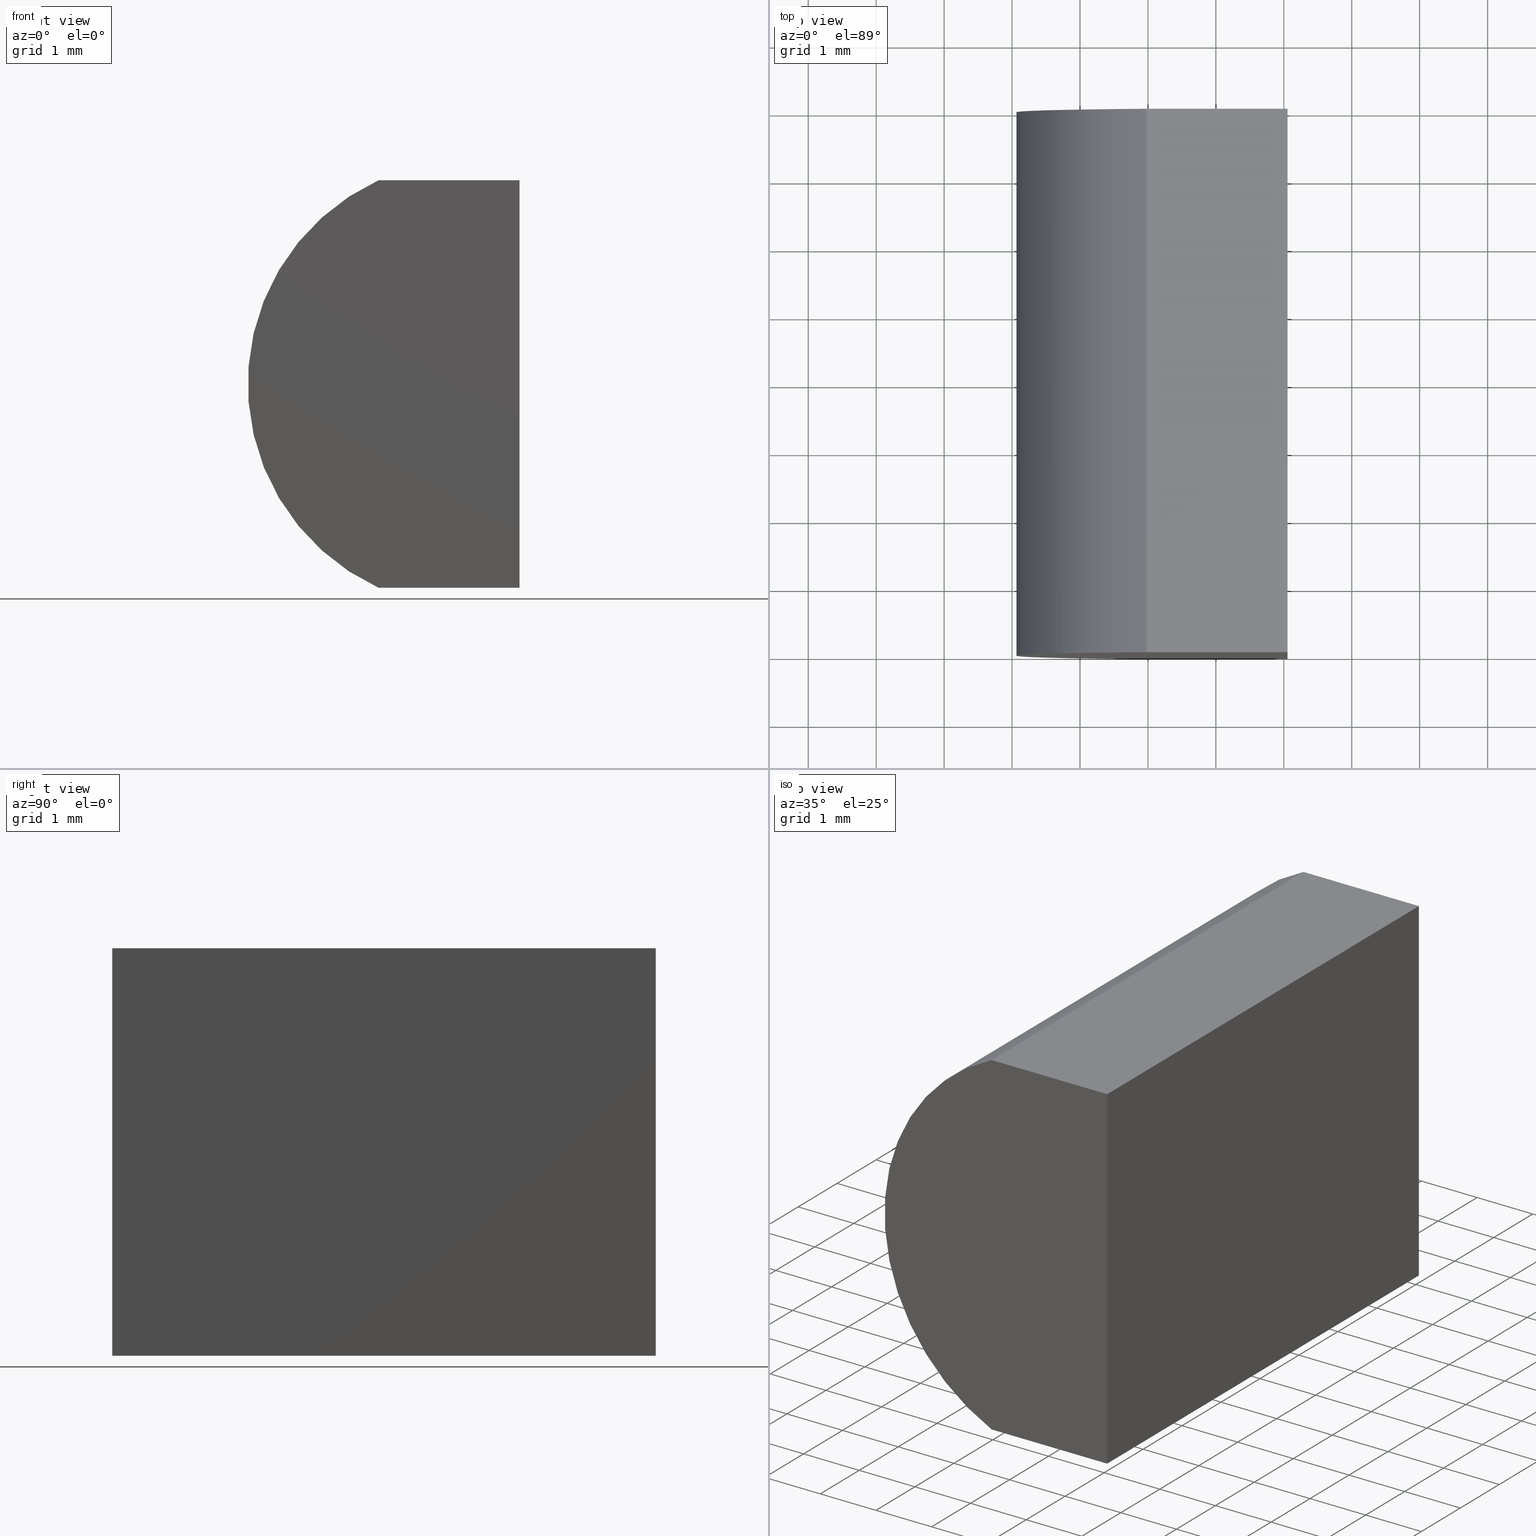
[diagram: canonical four-view strip — front | top / right | iso, engineering-drawing reading convention]
A machine part, canonical four-view strip (front | top / right | iso — engineering-drawing reading convention). The complete STEP part file that produces these views, byte-faithful:
ISO-10303-21;
HEADER;
FILE_DESCRIPTION (( 'STEP AP214' ),
    '1' );
FILE_NAME ('155005.STEP',
    '2019-06-14T05:51:22',
    ( 'user' ),
    ( '΢���й�' ),
    'SwSTEP 2.0',
    'SolidWorks 2016',
    '' );
FILE_SCHEMA (( 'AUTOMOTIVE_DESIGN' ));
ENDSEC;

DATA;
#1 = ORIENTED_EDGE ( 'NONE', *, *, #180, .T. ) ;
#2 = VECTOR ( 'NONE', #34, 1000.000000000000000 ) ;
#3 = PRESENTATION_STYLE_ASSIGNMENT (( #14 ) ) ;
#4 = CARTESIAN_POINT ( 'NONE',  ( 2.980431626364513400, 8.000000000000000000, -2.999999999999999600 ) ) ;
#5 = DIRECTION ( 'NONE',  ( 0.0000000000000000000, 0.0000000000000000000, 1.000000000000000000 ) ) ;
#6 = CARTESIAN_POINT ( 'NONE',  ( 5.055204334851266500, 0.0000000000000000000, 3.000000000000000000 ) ) ;
#7 = APPLICATION_CONTEXT ( 'automotive_design' ) ;
#8 = EDGE_CURVE ( 'NONE', #179, #190, #172, .T. ) ;
#9 = DIRECTION ( 'NONE',  ( 0.0000000000000000000, -0.0000000000000000000, 1.000000000000000000 ) ) ;
#10 = EDGE_CURVE ( 'NONE', #120, #190, #196, .T. ) ;
#11 = DIRECTION ( 'NONE',  ( -1.000000000000000000, -0.0000000000000000000, 6.270771741216556800E-016 ) ) ;
#12 = ORIENTED_EDGE ( 'NONE', *, *, #92, .T. ) ;
#13 = ORIENTED_EDGE ( 'NONE', *, *, #186, .T. ) ;
#14 = SURFACE_STYLE_USAGE ( .BOTH. , #73 ) ;
#15 = CARTESIAN_POINT ( 'NONE',  ( 2.980431626364513400, 8.000000000000000000, 3.000000000000000400 ) ) ;
#16 = ORIENTED_EDGE ( 'NONE', *, *, #8, .F. ) ;
#17 = DIRECTION ( 'NONE',  ( 0.0000000000000000000, 0.0000000000000000000, 1.000000000000000000 ) ) ;
#18 = MECHANICAL_DESIGN_GEOMETRIC_PRESENTATION_REPRESENTATION (  '', ( #106 ), #147 ) ;
#19 =( NAMED_UNIT ( * ) PLANE_ANGLE_UNIT ( ) SI_UNIT ( $, .RADIAN. ) );
#20 = PLANE ( 'NONE',  #135 ) ;
#21 = VECTOR ( 'NONE', #11, 1000.000000000000000 ) ;
#22 = PRODUCT_DEFINITION_SHAPE ( 'NONE', 'NONE',  #102 ) ;
#23 = AXIS2_PLACEMENT_3D ( 'NONE', #112, #42, #164 ) ;
#24 = ORIENTED_EDGE ( 'NONE', *, *, #122, .T. ) ;
#25 = PRODUCT_CONTEXT ( 'NONE', #7, 'mechanical' ) ;
#26 = UNCERTAINTY_MEASURE_WITH_UNIT (LENGTH_MEASURE( 1.000000000000000100E-005 ), #108, 'distance_accuracy_value', 'NONE');
#27 = VECTOR ( 'NONE', #150, 1000.000000000000000 ) ;
#28 = CARTESIAN_POINT ( 'NONE',  ( 2.980431626364513400, 8.000000000000000000, 3.000000000000000400 ) ) ;
#29 = PLANE ( 'NONE',  #23 ) ;
#30 = PRESENTATION_LAYER_ASSIGNMENT (  '', '', ( #106 ) ) ;
#31 = CARTESIAN_POINT ( 'NONE',  ( 2.980431626364513400, 8.000000000000000000, 3.000000000000000400 ) ) ;
#32 = CARTESIAN_POINT ( 'NONE',  ( 5.055204334851264700, 8.000000000000000000, -3.000000000000000900 ) ) ;
#33 = PRODUCT ( '155005', '155005', '', ( #25 ) ) ;
#34 = DIRECTION ( 'NONE',  ( -0.0000000000000000000, -1.000000000000000000, -0.0000000000000000000 ) ) ;
#35 = CARTESIAN_POINT ( 'NONE',  ( 4.355204334851265500, 0.0000000000000000000, 4.286263797015675000E-017 ) ) ;
#36 = AXIS2_PLACEMENT_3D ( 'NONE', #201, #129, #182 ) ;
#37 =( NAMED_UNIT ( * ) SI_UNIT ( $, .STERADIAN. ) SOLID_ANGLE_UNIT ( ) );
#38 = ORIENTED_EDGE ( 'NONE', *, *, #132, .T. ) ;
#39 = FACE_OUTER_BOUND ( 'NONE', #127, .T. ) ;
#40 = EDGE_CURVE ( 'NONE', #90, #71, #43, .T. ) ;
#41 = DIRECTION ( 'NONE',  ( -0.0000000000000000000, -1.000000000000000000, -0.0000000000000000000 ) ) ;
#42 = DIRECTION ( 'NONE',  ( 6.270771741216556800E-016, -0.0000000000000000000, 1.000000000000000000 ) ) ;
#43 = LINE ( 'NONE', #31, #91 ) ;
#44 = ORIENTED_EDGE ( 'NONE', *, *, #141, .F. ) ;
#45 = CARTESIAN_POINT ( 'NONE',  ( 5.055204334851266500, 8.000000000000000000, 3.000000000000000000 ) ) ;
#46 = ADVANCED_FACE ( 'NONE', ( #39 ), #20, .F. ) ;
#47 = FACE_OUTER_BOUND ( 'NONE', #65, .T. ) ;
#48 = SURFACE_SIDE_STYLE ('',( #98 ) ) ;
#49 = LINE ( 'NONE', #175, #144 ) ;
#50 = PLANE ( 'NONE',  #166 ) ;
#51 = CARTESIAN_POINT ( 'NONE',  ( 2.980431626364513400, 8.000000000000000000, -2.999999999999999600 ) ) ;
#52 = ORIENTED_EDGE ( 'NONE', *, *, #176, .F. ) ;
#53 = LINE ( 'NONE', #64, #199 ) ;
#54 = PLANE ( 'NONE',  #36 ) ;
#55 =( LENGTH_UNIT ( ) NAMED_UNIT ( * ) SI_UNIT ( .MILLI., .METRE. ) );
#56 = CARTESIAN_POINT ( 'NONE',  ( 2.980431626364513400, 0.0000000000000000000, -2.999999999999999600 ) ) ;
#57 = ORIENTED_EDGE ( 'NONE', *, *, #141, .T. ) ;
#58 = AXIS2_PLACEMENT_3D ( 'NONE', #192, #149, #9 ) ;
#59 = VERTEX_POINT ( 'NONE', #32 ) ;
#60 = PRESENTATION_STYLE_ASSIGNMENT (( #153 ) ) ;
#61 =( NAMED_UNIT ( * ) PLANE_ANGLE_UNIT ( ) SI_UNIT ( $, .RADIAN. ) );
#62 = UNCERTAINTY_MEASURE_WITH_UNIT (LENGTH_MEASURE( 1.000000000000000100E-005 ), #55, 'distance_accuracy_value', 'NONE');
#63 = AXIS2_PLACEMENT_3D ( 'NONE', #131, #155, #202 ) ;
#64 = CARTESIAN_POINT ( 'NONE',  ( 5.055204334851266500, 8.000000000000000000, 3.000000000000000000 ) ) ;
#65 = EDGE_LOOP ( 'NONE', ( #193, #16, #94, #97 ) ) ;
#66 =( LENGTH_UNIT ( ) NAMED_UNIT ( * ) SI_UNIT ( .MILLI., .METRE. ) );
#67 = ADVANCED_FACE ( 'NONE', ( #130 ), #121, .T. ) ;
#68 = DIRECTION ( 'NONE',  ( -2.090257247072183900E-016, 0.0000000000000000000, -1.000000000000000000 ) ) ;
#69 = COLOUR_RGB ( '',1.000000000000000000, 1.000000000000000000, 1.000000000000000000 ) ;
#70 = LINE ( 'NONE', #143, #104 ) ;
#71 = VERTEX_POINT ( 'NONE', #114 ) ;
#72 = FACE_OUTER_BOUND ( 'NONE', #188, .T. ) ;
#73 = SURFACE_SIDE_STYLE ('',( #116 ) ) ;
#74 = LINE ( 'NONE', #88, #156 ) ;
#75 = DIRECTION ( 'NONE',  ( -1.000000000000000000, 0.0000000000000000000, 2.891205793294678300E-016 ) ) ;
#76 = ORIENTED_EDGE ( 'NONE', *, *, #84, .T. ) ;
#77 = AXIS2_PLACEMENT_3D ( 'NONE', #110, #195, #17 ) ;
#78 = FILL_AREA_STYLE ('',( #154 ) ) ;
#79 = CARTESIAN_POINT ( 'NONE',  ( 2.980431626364513400, 0.0000000000000000000, -2.999999999999999600 ) ) ;
#80 = PRODUCT_DEFINITION_CONTEXT ( 'detailed design', #89, 'design' ) ;
#81 = SHAPE_DEFINITION_REPRESENTATION ( #22, #126 ) ;
#82 = DIRECTION ( 'NONE',  ( -0.0000000000000000000, -1.000000000000000000, -0.0000000000000000000 ) ) ;
#83 = LINE ( 'NONE', #160, #178 ) ;
#84 = EDGE_CURVE ( 'NONE', #71, #185, #83, .T. ) ;
#85 = CARTESIAN_POINT ( 'NONE',  ( 0.0000000000000000000, 0.0000000000000000000, 0.0000000000000000000 ) ) ;
#86 =( NAMED_UNIT ( * ) SI_UNIT ( $, .STERADIAN. ) SOLID_ANGLE_UNIT ( ) );
#87 = STYLED_ITEM ( 'NONE', ( #3 ), #145 ) ;
#88 = CARTESIAN_POINT ( 'NONE',  ( 5.055204334851264700, 8.000000000000000000, -3.000000000000000900 ) ) ;
#89 = APPLICATION_CONTEXT ( 'automotive_design' ) ;
#90 = VERTEX_POINT ( 'NONE', #136 ) ;
#91 = VECTOR ( 'NONE', #82, 1000.000000000000000 ) ;
#92 = EDGE_CURVE ( 'NONE', #59, #120, #142, .T. ) ;
#93 = APPLICATION_PROTOCOL_DEFINITION ( 'draft international standard', 'automotive_design', 1998, #89 ) ;
#94 = ORIENTED_EDGE ( 'NONE', *, *, #186, .F. ) ;
#95 = DIRECTION ( 'NONE',  ( -2.891205793294678300E-016, -0.0000000000000000000, -1.000000000000000000 ) ) ;
#96 = ORIENTED_EDGE ( 'NONE', *, *, #10, .F. ) ;
#97 = ORIENTED_EDGE ( 'NONE', *, *, #84, .F. ) ;
#98 = SURFACE_STYLE_FILL_AREA ( #109 ) ;
#99 = EDGE_CURVE ( 'NONE', #190, #71, #177, .T. ) ;
#100 = EDGE_LOOP ( 'NONE', ( #167, #96, #119, #173 ) ) ;
#101 = EDGE_LOOP ( 'NONE', ( #157, #203, #133, #138 ) ) ;
#102 = PRODUCT_DEFINITION ( 'δ֪', '', #113, #80 ) ;
#103 = DIRECTION ( 'NONE',  ( -0.0000000000000000000, -1.000000000000000000, -0.0000000000000000000 ) ) ;
#104 = VECTOR ( 'NONE', #41, 1000.000000000000000 ) ;
#105 = UNCERTAINTY_MEASURE_WITH_UNIT (LENGTH_MEASURE( 1.000000000000000100E-005 ), #66, 'distance_accuracy_value', 'NONE');
#106 = STYLED_ITEM ( 'NONE', ( #60 ), #126 ) ;
#107 = AXIS2_PLACEMENT_3D ( 'NONE', #35, #111, #5 ) ;
#108 =( LENGTH_UNIT ( ) NAMED_UNIT ( * ) SI_UNIT ( .MILLI., .METRE. ) );
#109 = FILL_AREA_STYLE ('',( #161 ) ) ;
#110 = CARTESIAN_POINT ( 'NONE',  ( 4.355204334851265500, 8.000000000000000000, 4.286263797015675000E-017 ) ) ;
#111 = DIRECTION ( 'NONE',  ( 0.0000000000000000000, 1.000000000000000000, 0.0000000000000000000 ) ) ;
#112 = CARTESIAN_POINT ( 'NONE',  ( 2.980431626364513400, 8.000000000000000000, -2.999999999999999600 ) ) ;
#113 = PRODUCT_DEFINITION_FORMATION_WITH_SPECIFIED_SOURCE ( '�κ�', '', #33, .NOT_KNOWN. ) ;
#114 = CARTESIAN_POINT ( 'NONE',  ( 2.980431626364513400, 0.0000000000000000000, 3.000000000000000400 ) ) ;
#115 = VERTEX_POINT ( 'NONE', #45 ) ;
#116 = SURFACE_STYLE_FILL_AREA ( #78 ) ;
#117 = AXIS2_PLACEMENT_3D ( 'NONE', #85, #174, #137 ) ;
#118 = ADVANCED_FACE ( 'NONE', ( #47 ), #159, .F. ) ;
#119 = ORIENTED_EDGE ( 'NONE', *, *, #92, .F. ) ;
#120 = VERTEX_POINT ( 'NONE', #51 ) ;
#121 = CYLINDRICAL_SURFACE ( 'NONE', #63, 3.299999999999999800 ) ;
#122 = EDGE_CURVE ( 'NONE', #90, #115, #169, .T. ) ;
#123 = ORIENTED_EDGE ( 'NONE', *, *, #122, .F. ) ;
#124 = FACE_OUTER_BOUND ( 'NONE', #170, .T. ) ;
#125 =( NAMED_UNIT ( * ) SI_UNIT ( $, .STERADIAN. ) SOLID_ANGLE_UNIT ( ) );
#126 = ADVANCED_BREP_SHAPE_REPRESENTATION ( '155005', ( #145, #117 ), #171 ) ;
#127 = EDGE_LOOP ( 'NONE', ( #13, #52, #44, #1 ) ) ;
#128 =( NAMED_UNIT ( * ) PLANE_ANGLE_UNIT ( ) SI_UNIT ( $, .RADIAN. ) );
#129 = DIRECTION ( 'NONE',  ( 0.0000000000000000000, 1.000000000000000000, 0.0000000000000000000 ) ) ;
#130 = FACE_OUTER_BOUND ( 'NONE', #101, .T. ) ;
#131 = CARTESIAN_POINT ( 'NONE',  ( 4.355204334851265500, 8.000000000000000000, 4.286263797015675000E-017 ) ) ;
#132 = EDGE_CURVE ( 'NONE', #120, #90, #200, .T. ) ;
#133 = ORIENTED_EDGE ( 'NONE', *, *, #132, .F. ) ;
#134 = ADVANCED_FACE ( 'NONE', ( #124 ), #54, .T. ) ;
#135 = AXIS2_PLACEMENT_3D ( 'NONE', #187, #75, #158 ) ;
#136 = CARTESIAN_POINT ( 'NONE',  ( 2.980431626364513400, 8.000000000000000000, 3.000000000000000400 ) ) ;
#137 = DIRECTION ( 'NONE',  ( 1.000000000000000000, 0.0000000000000000000, 0.0000000000000000000 ) ) ;
#138 = ORIENTED_EDGE ( 'NONE', *, *, #10, .T. ) ;
#139 = MECHANICAL_DESIGN_GEOMETRIC_PRESENTATION_REPRESENTATION (  '', ( #87 ), #152 ) ;
#140 = CARTESIAN_POINT ( 'NONE',  ( 2.980431626364513400, 8.000000000000000000, -2.999999999999999600 ) ) ;
#141 = EDGE_CURVE ( 'NONE', #115, #59, #74, .T. ) ;
#142 = LINE ( 'NONE', #4, #21 ) ;
#143 = CARTESIAN_POINT ( 'NONE',  ( 5.055204334851264700, 8.000000000000000000, -3.000000000000000900 ) ) ;
#144 = VECTOR ( 'NONE', #165, 1000.000000000000000 ) ;
#145 = MANIFOLD_SOLID_BREP ( '͹̨-����1', #162 ) ;
#146 = APPLICATION_PROTOCOL_DEFINITION ( 'draft international standard', 'automotive_design', 1998, #7 ) ;
#147 =( GEOMETRIC_REPRESENTATION_CONTEXT ( 3 ) GLOBAL_UNCERTAINTY_ASSIGNED_CONTEXT ( ( #62 ) ) GLOBAL_UNIT_ASSIGNED_CONTEXT ( ( #55, #128, #37 ) ) REPRESENTATION_CONTEXT ( 'NONE', 'WORKASPACE' ) );
#148 = FACE_OUTER_BOUND ( 'NONE', #100, .T. ) ;
#149 = DIRECTION ( 'NONE',  ( 0.0000000000000000000, 1.000000000000000000, 0.0000000000000000000 ) ) ;
#150 = DIRECTION ( 'NONE',  ( -1.000000000000000000, -0.0000000000000000000, 6.270771741216556800E-016 ) ) ;
#151 = DIRECTION ( 'NONE',  ( 1.000000000000000000, 0.0000000000000000000, -2.090257247072183900E-016 ) ) ;
#152 =( GEOMETRIC_REPRESENTATION_CONTEXT ( 3 ) GLOBAL_UNCERTAINTY_ASSIGNED_CONTEXT ( ( #105 ) ) GLOBAL_UNIT_ASSIGNED_CONTEXT ( ( #66, #19, #125 ) ) REPRESENTATION_CONTEXT ( 'NONE', 'WORKASPACE' ) );
#153 = SURFACE_STYLE_USAGE ( .BOTH. , #48 ) ;
#154 = FILL_AREA_STYLE_COLOUR ( '', #189 ) ;
#155 = DIRECTION ( 'NONE',  ( -0.0000000000000000000, -1.000000000000000000, -0.0000000000000000000 ) ) ;
#156 = VECTOR ( 'NONE', #95, 1000.000000000000000 ) ;
#157 = ORIENTED_EDGE ( 'NONE', *, *, #99, .T. ) ;
#158 = DIRECTION ( 'NONE',  ( 2.891205793294678300E-016, 0.0000000000000000000, 1.000000000000000000 ) ) ;
#159 = PLANE ( 'NONE',  #58 ) ;
#160 = CARTESIAN_POINT ( 'NONE',  ( 2.980431626364513400, 0.0000000000000000000, 3.000000000000000400 ) ) ;
#161 = FILL_AREA_STYLE_COLOUR ( '', #69 ) ;
#162 = CLOSED_SHELL ( 'NONE', ( #67, #197, #46, #183, #134, #118 ) ) ;
#163 = CARTESIAN_POINT ( 'NONE',  ( 5.055204334851264700, 0.0000000000000000000, -3.000000000000000900 ) ) ;
#164 = DIRECTION ( 'NONE',  ( 1.000000000000000000, 0.0000000000000000000, -6.270771741216556800E-016 ) ) ;
#165 = DIRECTION ( 'NONE',  ( -2.891205793294678300E-016, -0.0000000000000000000, -1.000000000000000000 ) ) ;
#166 = AXIS2_PLACEMENT_3D ( 'NONE', #15, #68, #191 ) ;
#167 = ORIENTED_EDGE ( 'NONE', *, *, #8, .T. ) ;
#168 = ORIENTED_EDGE ( 'NONE', *, *, #180, .F. ) ;
#169 = LINE ( 'NONE', #28, #198 ) ;
#170 = EDGE_LOOP ( 'NONE', ( #38, #24, #57, #12 ) ) ;
#171 =( GEOMETRIC_REPRESENTATION_CONTEXT ( 3 ) GLOBAL_UNCERTAINTY_ASSIGNED_CONTEXT ( ( #26 ) ) GLOBAL_UNIT_ASSIGNED_CONTEXT ( ( #108, #61, #86 ) ) REPRESENTATION_CONTEXT ( 'NONE', 'WORKASPACE' ) );
#172 = LINE ( 'NONE', #79, #27 ) ;
#173 = ORIENTED_EDGE ( 'NONE', *, *, #176, .T. ) ;
#174 = DIRECTION ( 'NONE',  ( 0.0000000000000000000, 0.0000000000000000000, 1.000000000000000000 ) ) ;
#175 = CARTESIAN_POINT ( 'NONE',  ( 5.055204334851264700, 0.0000000000000000000, -3.000000000000000900 ) ) ;
#176 = EDGE_CURVE ( 'NONE', #59, #179, #70, .T. ) ;
#177 = CIRCLE ( 'NONE', #107, 3.299999999999999800 ) ;
#178 = VECTOR ( 'NONE', #151, 1000.000000000000000 ) ;
#179 = VERTEX_POINT ( 'NONE', #163 ) ;
#180 = EDGE_CURVE ( 'NONE', #115, #185, #53, .T. ) ;
#181 = ORIENTED_EDGE ( 'NONE', *, *, #40, .T. ) ;
#182 = DIRECTION ( 'NONE',  ( 0.0000000000000000000, -0.0000000000000000000, 1.000000000000000000 ) ) ;
#183 = ADVANCED_FACE ( 'NONE', ( #148 ), #29, .F. ) ;
#184 = PRODUCT_RELATED_PRODUCT_CATEGORY ( 'part', '', ( #33 ) ) ;
#185 = VERTEX_POINT ( 'NONE', #6 ) ;
#186 = EDGE_CURVE ( 'NONE', #185, #179, #49, .T. ) ;
#187 = CARTESIAN_POINT ( 'NONE',  ( 5.055204334851264700, 8.000000000000000000, -3.000000000000000900 ) ) ;
#188 = EDGE_LOOP ( 'NONE', ( #76, #168, #123, #181 ) ) ;
#189 = COLOUR_RGB ( '',1.000000000000000000, 1.000000000000000000, 1.000000000000000000 ) ;
#190 = VERTEX_POINT ( 'NONE', #56 ) ;
#191 = DIRECTION ( 'NONE',  ( -1.000000000000000000, 0.0000000000000000000, 2.090257247072183900E-016 ) ) ;
#192 = CARTESIAN_POINT ( 'NONE',  ( 4.355204334851265500, 0.0000000000000000000, 4.286263797015675000E-017 ) ) ;
#193 = ORIENTED_EDGE ( 'NONE', *, *, #99, .F. ) ;
#194 = DIRECTION ( 'NONE',  ( 1.000000000000000000, 0.0000000000000000000, -2.090257247072183900E-016 ) ) ;
#195 = DIRECTION ( 'NONE',  ( 0.0000000000000000000, 1.000000000000000000, 0.0000000000000000000 ) ) ;
#196 = LINE ( 'NONE', #140, #2 ) ;
#197 = ADVANCED_FACE ( 'NONE', ( #72 ), #50, .F. ) ;
#198 = VECTOR ( 'NONE', #194, 1000.000000000000000 ) ;
#199 = VECTOR ( 'NONE', #103, 1000.000000000000000 ) ;
#200 = CIRCLE ( 'NONE', #77, 3.299999999999999800 ) ;
#201 = CARTESIAN_POINT ( 'NONE',  ( 4.355204334851265500, 8.000000000000000000, 4.286263797015675000E-017 ) ) ;
#202 = DIRECTION ( 'NONE',  ( 0.0000000000000000000, 0.0000000000000000000, -1.000000000000000000 ) ) ;
#203 = ORIENTED_EDGE ( 'NONE', *, *, #40, .F. ) ;
#204 = PRESENTATION_LAYER_ASSIGNMENT (  '', '', ( #87 ) ) ;
ENDSEC;
END-ISO-10303-21;
